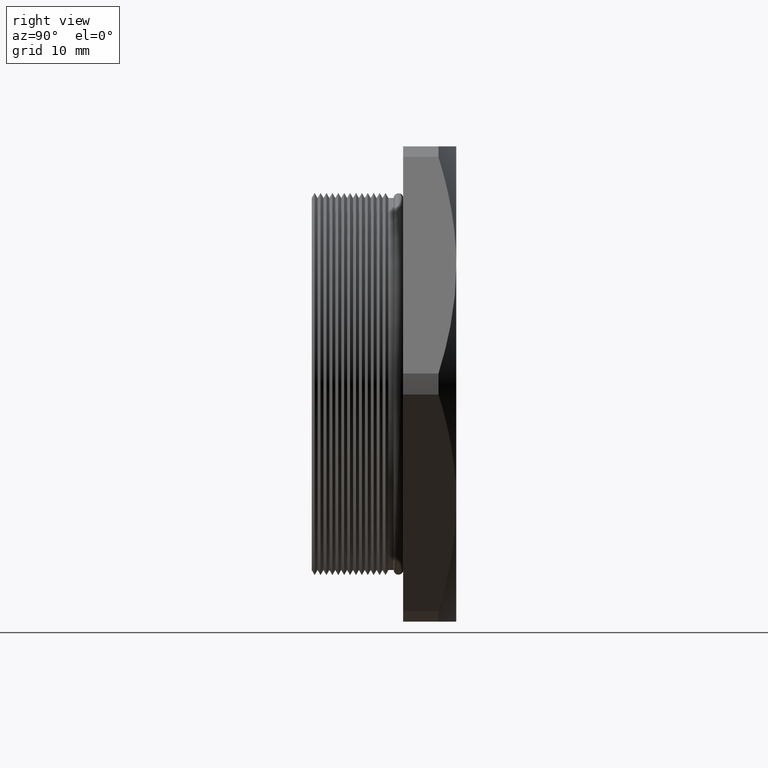
[diagram: clean part render]
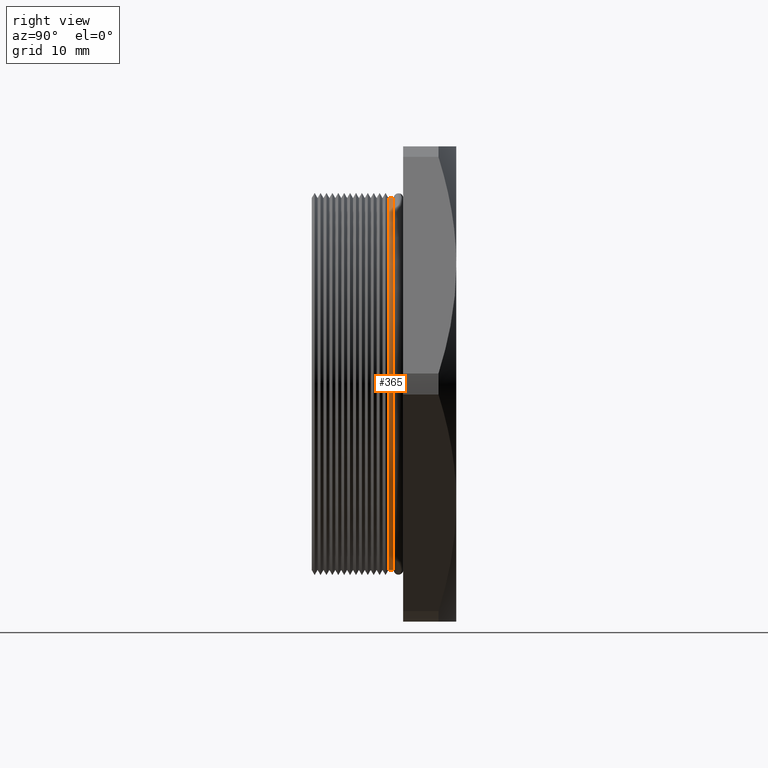
[diagram: same view with one face highlighted and labeled with its STEP entity id]
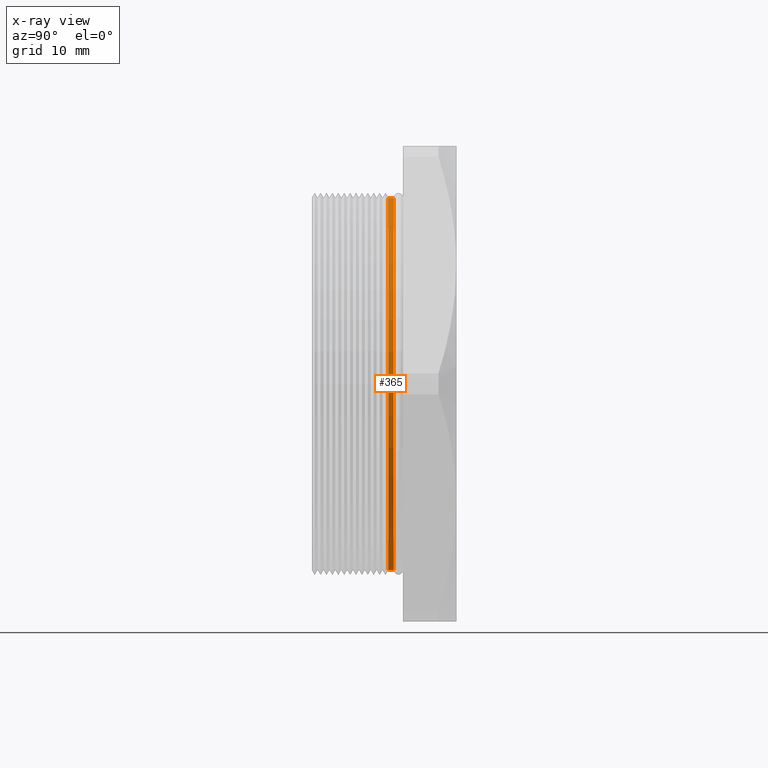
[diagram: x-ray of the same camera — body ghosted, the highlighted face saturated]
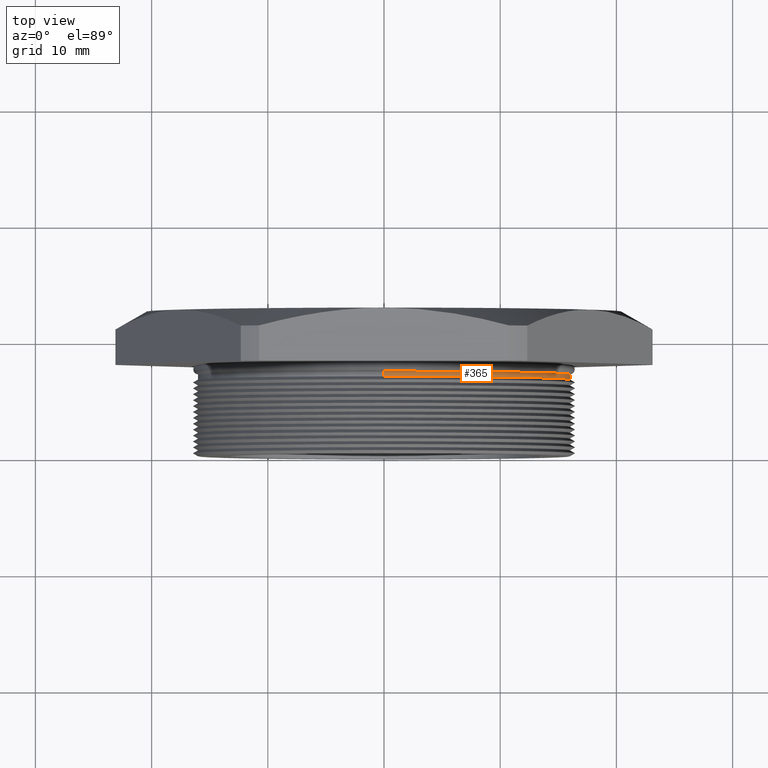
[diagram: same view with one face highlighted and labeled with its STEP entity id]
A machine part, right view. The second image highlights one B-rep face of the part: STEP entity #365.
The next image is the same camera in x-ray: the body ghosted, the highlighted face saturated — about 0% of this face is hidden behind the body in this view.
A second angle (top view) of the same face is appended — the face is thin or edge-on in the first view.
In plain terms, the highlighted cylindrical surface (partial cylindrical patch) has radius 16.002 mm, axis along (0, -1, 0).
Its self-contained STEP definition (entity closure, byte-faithful):
#236 = VERTEX_POINT ( 'NONE', #1202 ) ;
#243 = EDGE_CURVE ( 'NONE', #244, #236, #1249, .T. ) ;
#244 = VERTEX_POINT ( 'NONE', #1245 ) ;
#357 = EDGE_CURVE ( 'NONE', #358, #359, #1505, .T. ) ;
#358 = VERTEX_POINT ( 'NONE', #1500 ) ;
#359 = VERTEX_POINT ( 'NONE', #1499 ) ;
#365 = ADVANCED_FACE ( 'NONE', ( #1490 ), #1488, .T. ) ;
#366 = ORIENTED_EDGE ( 'NONE', *, *, #357, .F. ) ;
#367 = ORIENTED_EDGE ( 'NONE', *, *, #368, .F. ) ;
#368 = EDGE_CURVE ( 'NONE', #236, #358, #1489, .T. ) ;
#375 = EDGE_LOOP ( 'NONE', ( #376, #377, #366, #367 ) ) ;
#376 = ORIENTED_EDGE ( 'NONE', *, *, #243, .F. ) ;
#377 = ORIENTED_EDGE ( 'NONE', *, *, #378, .T. ) ;
#378 = EDGE_CURVE ( 'NONE', #244, #359, #1530, .T. ) ;
#1202 = CARTESIAN_POINT ( 'NONE',  ( 0.0000000000000000000, 0.2778020518525162700, -0.6300000000000000000 ) ) ;
#1245 = CARTESIAN_POINT ( 'NONE',  ( 7.715274834628325400E-017, 0.2778020518525162700, 0.6300000000000000000 ) ) ;
#1246 = DIRECTION ( 'NONE',  ( 0.0000000000000000000, 0.0000000000000000000, 1.000000000000000000 ) ) ;
#1247 = DIRECTION ( 'NONE',  ( 0.0000000000000000000, 1.000000000000000000, 0.0000000000000000000 ) ) ;
#1248 = AXIS2_PLACEMENT_3D ( 'NONE', #1254, #1247, #1246 ) ;
#1249 = CIRCLE ( 'NONE', #1248, 0.6300000000000000000 ) ;
#1254 = CARTESIAN_POINT ( 'NONE',  ( 0.0000000000000000000, 0.2778020518525162700, 0.0000000000000000000 ) ) ;
#1481 = DIRECTION ( 'NONE',  ( 0.0000000000000000000, -1.000000000000000000, 0.0000000000000000000 ) ) ;
#1482 = VECTOR ( 'NONE', #1481, 39.37007874015748100 ) ;
#1483 = CARTESIAN_POINT ( 'NONE',  ( 0.0000000000000000000, 0.0000000000000000000, -0.6300000000000000000 ) ) ;
#1484 = DIRECTION ( 'NONE',  ( 0.0000000000000000000, 0.0000000000000000000, -1.000000000000000000 ) ) ;
#1485 = DIRECTION ( 'NONE',  ( 0.0000000000000000000, -1.000000000000000000, 0.0000000000000000000 ) ) ;
#1486 = CARTESIAN_POINT ( 'NONE',  ( 0.0000000000000000000, 0.0000000000000000000, 0.0000000000000000000 ) ) ;
#1487 = AXIS2_PLACEMENT_3D ( 'NONE', #1486, #1485, #1484 ) ;
#1488 = CYLINDRICAL_SURFACE ( 'NONE', #1487, 0.6300000000000000000 ) ;
#1489 = LINE ( 'NONE', #1483, #1482 ) ;
#1490 = FACE_OUTER_BOUND ( 'NONE', #375, .T. ) ;
#1499 = CARTESIAN_POINT ( 'NONE',  ( 7.715274834628325400E-017, 0.2599999999999999000, 0.6300000000000000000 ) ) ;
#1500 = CARTESIAN_POINT ( 'NONE',  ( 0.0000000000000000000, 0.2599999999999999000, -0.6300000000000000000 ) ) ;
#1501 = DIRECTION ( 'NONE',  ( 0.0000000000000000000, 0.0000000000000000000, -1.000000000000000000 ) ) ;
#1502 = DIRECTION ( 'NONE',  ( 0.0000000000000000000, -1.000000000000000000, 0.0000000000000000000 ) ) ;
#1503 = CARTESIAN_POINT ( 'NONE',  ( 0.0000000000000000000, 0.2599999999999999000, 0.0000000000000000000 ) ) ;
#1504 = AXIS2_PLACEMENT_3D ( 'NONE', #1503, #1502, #1501 ) ;
#1505 = CIRCLE ( 'NONE', #1504, 0.6300000000000000000 ) ;
#1527 = DIRECTION ( 'NONE',  ( 0.0000000000000000000, -1.000000000000000000, 0.0000000000000000000 ) ) ;
#1528 = VECTOR ( 'NONE', #1527, 39.37007874015748100 ) ;
#1529 = CARTESIAN_POINT ( 'NONE',  ( 7.715274834628325400E-017, 0.0000000000000000000, 0.6300000000000000000 ) ) ;
#1530 = LINE ( 'NONE', #1529, #1528 ) ;